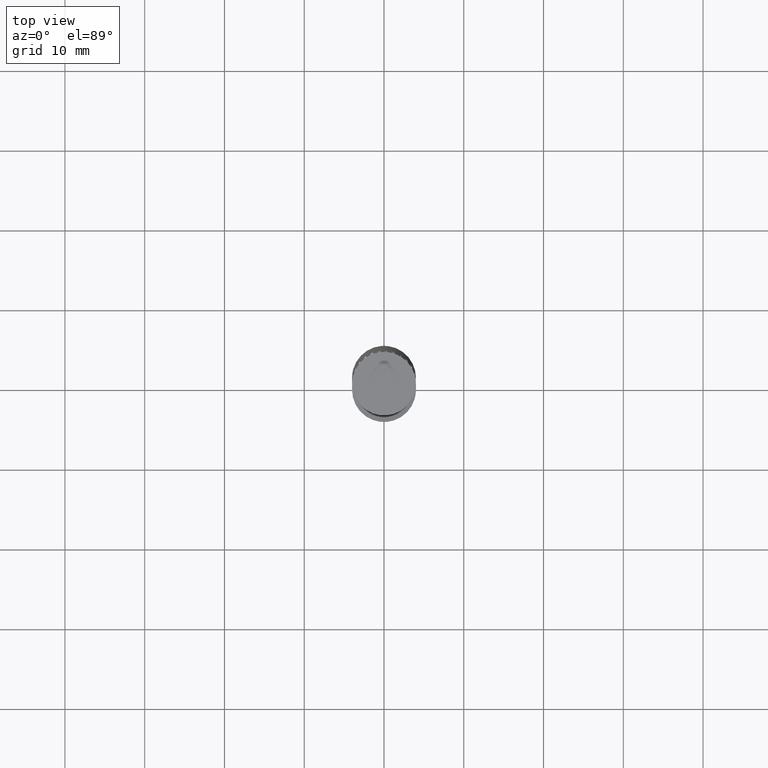
[diagram: clean part render]
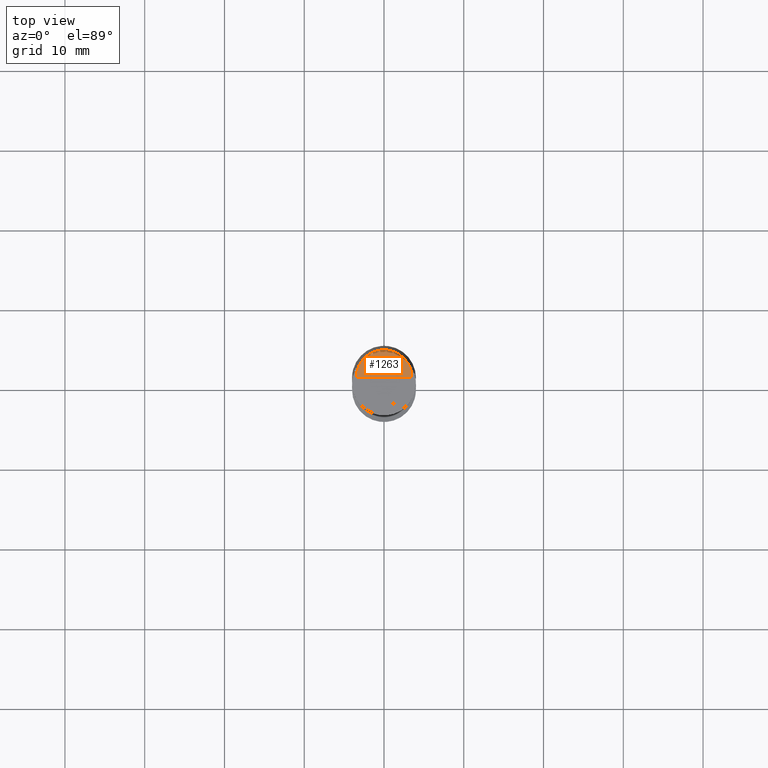
[diagram: same view with one face highlighted and labeled with its STEP entity id]
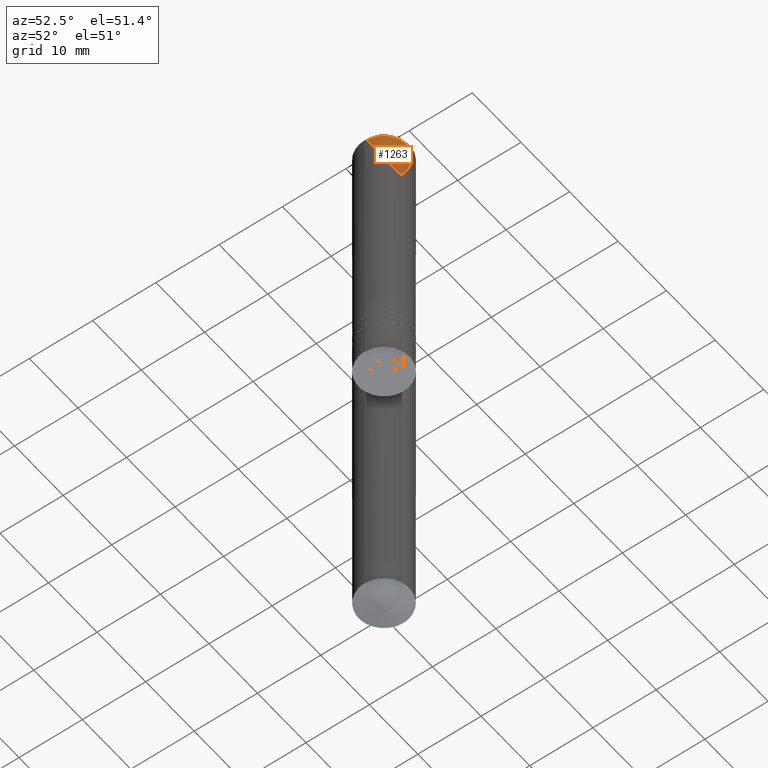
[diagram: same view with one face highlighted and labeled with its STEP entity id]
A machine part, top view. The second image highlights one B-rep face of the part: STEP entity #1263.
A second angle (auxiliary view) of the same face is appended — the face is thin or edge-on in the first view.
In plain terms, the highlighted face is a freeform B-spline surface patch.
Its self-contained STEP definition (entity closure, byte-faithful):
#1021=CARTESIAN_POINT('',(3.5,0.0,36.0));
#1022=CARTESIAN_POINT('',(3.5,3.5,36.0));
#1023=CARTESIAN_POINT('',(0.0,3.5,36.0));
#1024=CARTESIAN_POINT('',(-3.5,3.5,36.0));
#1025=CARTESIAN_POINT('',(-3.5,0.0,36.0));
#1026=CARTESIAN_POINT('',(0.0,0.0,36.0));
#1248=(
BOUNDED_SURFACE()
B_SPLINE_SURFACE(1,2,(
(#1021,#1022,#1023,#1024,#1025),
(#1026,#1026,#1026,#1026,#1026)
), .UNSPECIFIED.,.F.,.F.,.F.)
B_SPLINE_SURFACE_WITH_KNOTS((2,2),(3,2,3),(
0.0,1.0),(
0.0,0.5,1.0), .UNSPECIFIED.)
GEOMETRIC_REPRESENTATION_ITEM()
RATIONAL_B_SPLINE_SURFACE(((1.0,0.707106781187,1.0,0.707106781187,1.0),
(1.0,0.707106781187,1.0,0.707106781187,1.0)
))
REPRESENTATION_ITEM('')
SURFACE()
);
#1249=(
BOUNDED_CURVE()
B_SPLINE_CURVE(2,(#1025,#1024,#1023,#1022,#1021),.UNSPECIFIED.,.F.,.F.)
B_SPLINE_CURVE_WITH_KNOTS((3,2,3),
(0.0,0.5,1.0),.UNSPECIFIED.)
CURVE()
GEOMETRIC_REPRESENTATION_ITEM()
RATIONAL_B_SPLINE_CURVE((1.0,0.707106781187,1.0,0.707106781187,1.0))
REPRESENTATION_ITEM('')
);
#1250=(
BOUNDED_CURVE()
B_SPLINE_CURVE(1,(#1021,#1026),.UNSPECIFIED.,.F.,.F.)
B_SPLINE_CURVE_WITH_KNOTS((2,2),
(0.0,1.0),.UNSPECIFIED.)
CURVE()
GEOMETRIC_REPRESENTATION_ITEM()
RATIONAL_B_SPLINE_CURVE((1.0,1.0))
REPRESENTATION_ITEM('')
);
#1251=(
BOUNDED_CURVE()
B_SPLINE_CURVE(1,(#1026,#1025),.UNSPECIFIED.,.F.,.F.)
B_SPLINE_CURVE_WITH_KNOTS((2,2),
(0.0,1.0),.UNSPECIFIED.)
CURVE()
GEOMETRIC_REPRESENTATION_ITEM()
RATIONAL_B_SPLINE_CURVE((1.0,1.0))
REPRESENTATION_ITEM('')
);
#1252=VERTEX_POINT('',#1021);
#1253=VERTEX_POINT('',#1025);
#1254=VERTEX_POINT('',#1026);
#1255=EDGE_CURVE('',#1253,#1252,#1249,.T.);
#1256=EDGE_CURVE('',#1252,#1254,#1250,.T.);
#1257=EDGE_CURVE('',#1254,#1253,#1251,.T.);
#1258=ORIENTED_EDGE('',*,*,#1255,.T.);
#1259=ORIENTED_EDGE('',*,*,#1256,.T.);
#1260=ORIENTED_EDGE('',*,*,#1257,.T.);
#1261=EDGE_LOOP('',(#1258,#1259,#1260));
#1262=FACE_OUTER_BOUND('',#1261,.T.);
#1263=ADVANCED_FACE('',(#1262),#1248,.T.);